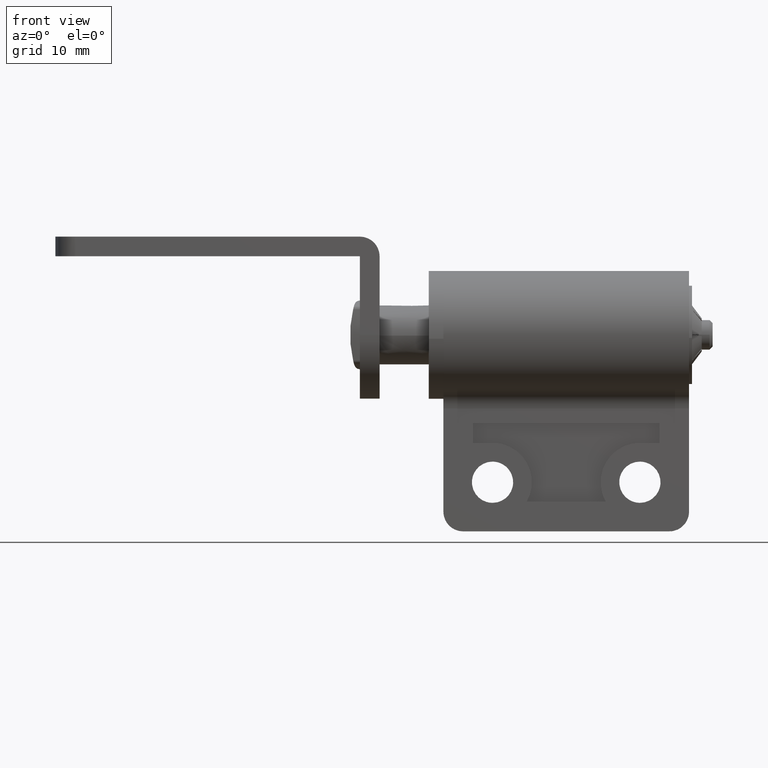
[diagram: clean part render]
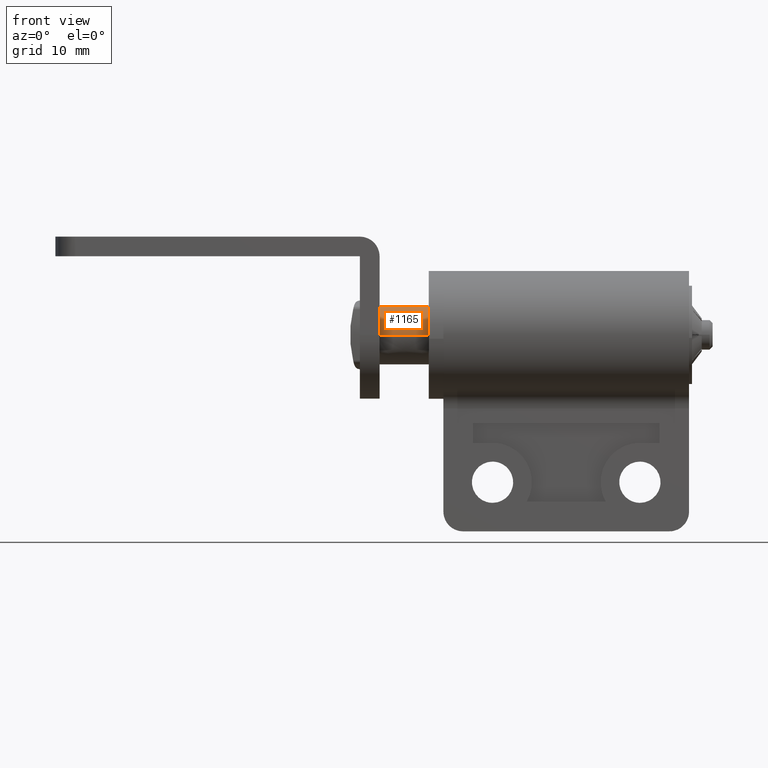
[diagram: same view with one face highlighted and labeled with its STEP entity id]
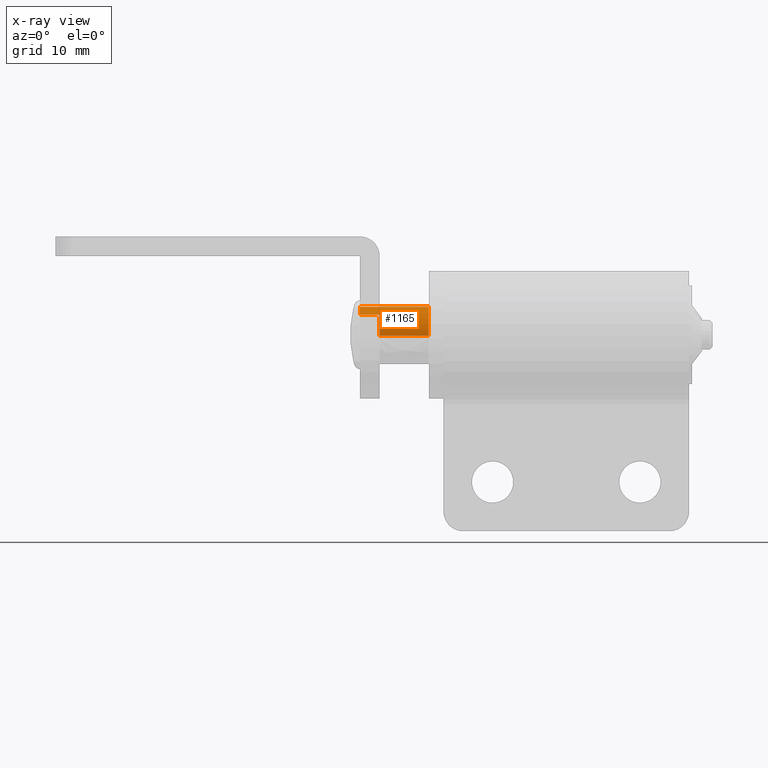
[diagram: x-ray of the same camera — body ghosted, the highlighted face saturated]
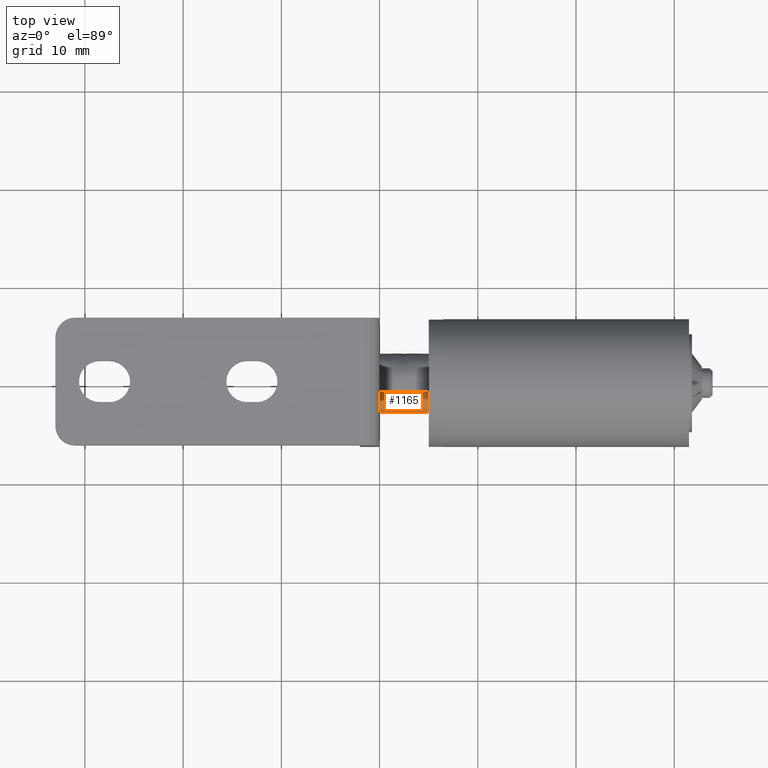
[diagram: same view with one face highlighted and labeled with its STEP entity id]
A machine part, front view. The second image highlights one B-rep face of the part: STEP entity #1165.
The next image is the same camera in x-ray: the body ghosted, the highlighted face saturated — about 0% of this face is hidden behind the body in this view.
A second angle (top view) of the same face is appended — the face is thin or edge-on in the first view.
In plain terms, the highlighted face is a freeform B-spline surface patch.
Its self-contained STEP definition (entity closure, byte-faithful):
#944=CARTESIAN_POINT('',(5.0,-0.947927683237747,2.846301654314158));
#945=VERTEX_POINT('',#944);
#978=CARTESIAN_POINT('',(5.000000000000001,-2.999187608111942,-0.069811828136555));
#979=VERTEX_POINT('',#978);
#993=CARTESIAN_POINT('',(3.330669E-016,-2.999187593945577,-0.069812436732782));
#994=VERTEX_POINT('',#993);
#995=CARTESIAN_POINT('',(5.000000000000001,-2.999187608111942,-0.069811828136555));
#996=CARTESIAN_POINT('',(3.330669E-016,-2.999187593945577,-0.069812436732782));
#997=QUASI_UNIFORM_CURVE('',1,(#995,#996),.UNSPECIFIED.,.F.,.U.);
#998=EDGE_CURVE('',#979,#994,#997,.T.);
#1068=CARTESIAN_POINT('',(-2.0,-0.947925828354257,2.846302281841339));
#1069=VERTEX_POINT('',#1068);
#1085=CARTESIAN_POINT('',(5.0,-0.947927683237747,2.846301654314158));
#1086=CARTESIAN_POINT('',(-2.0,-0.947925828354257,2.846302281841339));
#1087=QUASI_UNIFORM_CURVE('',1,(#1085,#1086),.UNSPECIFIED.,.F.,.U.);
#1088=EDGE_CURVE('',#945,#1069,#1087,.T.);
#1093=CARTESIAN_POINT('',(5.175000000000003,-2.998793601589934,-0.086738751734261));
#1094=CARTESIAN_POINT('',(5.175000000000001,-2.998990374310826,-0.078285194174667));
#1095=CARTESIAN_POINT('',(5.175000000000002,-3.050764316104186,2.145976355159272));
#1096=CARTESIAN_POINT('',(5.175000000000003,-0.939050498400793,2.849258097543949));
#1097=CARTESIAN_POINT('',(5.175000000000001,-0.930187064735721,2.852209961105773));
#1098=CARTESIAN_POINT('',(-2.179375000000000,-2.998793601589934,-0.086738751734261));
#1099=CARTESIAN_POINT('',(-2.179375000000000,-2.998990374310826,-0.078285194174667));
#1100=CARTESIAN_POINT('',(-2.179375000000000,-3.050764316104186,2.145976355159272));
#1101=CARTESIAN_POINT('',(-2.179374999999999,-0.939050498400793,2.849258097543949));
#1102=CARTESIAN_POINT('',(-2.179374999999999,-0.930187064735721,2.852209961105773));
#1110=(BOUNDED_SURFACE()B_SPLINE_SURFACE(2,1,((#1093,#1098),(#1094,#1099),(#1095,#1100),(#1096,#1101),(#1097,#1102)),.UNSPECIFIED.,.F.,.F.,.U.)B_SPLINE_SURFACE_WITH_KNOTS((3,1,1,3),(2,2),(0.0,0.019747452820523,3.969093624480461,3.988842433638872),(0.0,7.354375000000002),.UNSPECIFIED.)GEOMETRIC_REPRESENTATION_ITEM()RATIONAL_B_SPLINE_SURFACE(((1.002343231418496,1.002343231418496),(1.001171615709248,1.001171615709248),(0.765685424949238,0.765685424949238),(0.906977187688133,0.906977187688133),(0.907680205396570,0.907680205396570)))REPRESENTATION_ITEM('')SURFACE());
#1111=CARTESIAN_POINT('',(5.000000000000001,-2.999187608111941,-0.069811828136555));
#1112=CARTESIAN_POINT('',(5.0,-3.0,-0.034910641003469));
#1113=CARTESIAN_POINT('',(5.0,-3.0,0.0));
#1114=CARTESIAN_POINT('',(5.0,-3.000000000000000,2.162882820547033));
#1115=CARTESIAN_POINT('',(5.0,-0.947927683237747,2.846301654314158));
#1123=(BOUNDED_CURVE()B_SPLINE_CURVE(2,(#1111,#1112,#1113,#1114,#1115),.UNSPECIFIED.,.F.,.U.)B_SPLINE_CURVE_WITH_KNOTS((3,2,3),(0.745905477728320,0.750000000000000,0.946282106299464),.UNSPECIFIED.)CURVE()GEOMETRIC_REPRESENTATION_ITEM()RATIONAL_B_SPLINE_CURVE((0.990563069948447,0.995202968769377,1.0,0.770041208361864,0.901176784602230))REPRESENTATION_ITEM(''));
#1124=EDGE_CURVE('',#979,#945,#1123,.T.);
#1125=ORIENTED_EDGE('',*,*,#1124,.T.);
#1126=ORIENTED_EDGE('',*,*,#1088,.T.);
#1127=CARTESIAN_POINT('',(-2.0,-2.200000000000000,2.039607999999790));
#1128=VERTEX_POINT('',#1127);
#1129=CARTESIAN_POINT('',(-2.0,-2.200000000000000,2.039607999999790));
#1130=CARTESIAN_POINT('',(-2.0,-1.677325535437698,2.603384759595766));
#1131=CARTESIAN_POINT('',(-2.0,-0.947925828354257,2.846302281841340));
#1139=(BOUNDED_CURVE()B_SPLINE_CURVE(2,(#1129,#1130,#1131),.UNSPECIFIED.,.F.,.U.)B_SPLINE_CURVE_WITH_KNOTS((3,3),(0.0,0.303999316517522),.UNSPECIFIED.)CURVE()GEOMETRIC_REPRESENTATION_ITEM()RATIONAL_B_SPLINE_CURVE((1.0,0.949219642791800,0.960188061118834))REPRESENTATION_ITEM(''));
#1140=EDGE_CURVE('',#1128,#1069,#1139,.T.);
#1141=ORIENTED_EDGE('',*,*,#1140,.F.);
#1142=CARTESIAN_POINT('',(0.0,-2.200000000000000,2.039607805437110));
#1143=VERTEX_POINT('',#1142);
#1144=CARTESIAN_POINT('',(-2.0,-2.200000000000000,2.039607999999790));
#1145=CARTESIAN_POINT('',(0.0,-2.200000000000000,2.039607805437110));
#1146=QUASI_UNIFORM_CURVE('',1,(#1144,#1145),.UNSPECIFIED.,.F.,.U.);
#1147=EDGE_CURVE('',#1128,#1143,#1146,.T.);
#1148=ORIENTED_EDGE('',*,*,#1147,.T.);
#1149=CARTESIAN_POINT('',(3.330669E-016,-2.999187593945577,-0.069812436732782));
#1150=CARTESIAN_POINT('',(0.0,-3.027512215416741,1.147021069367691));
#1151=CARTESIAN_POINT('',(0.0,-2.200000000000003,2.039607805437111));
#1159=(BOUNDED_CURVE()B_SPLINE_CURVE(2,(#1149,#1150,#1151),.UNSPECIFIED.,.F.,.U.)B_SPLINE_CURVE_WITH_KNOTS((3,3),(0.485165571315524,1.0),.UNSPECIFIED.)CURVE()GEOMETRIC_REPRESENTATION_ITEM()RATIONAL_B_SPLINE_CURVE((0.866784032146344,0.862710819017474,1.0))REPRESENTATION_ITEM(''));
#1160=EDGE_CURVE('',#994,#1143,#1159,.T.);
#1161=ORIENTED_EDGE('',*,*,#1160,.F.);
#1162=ORIENTED_EDGE('',*,*,#998,.F.);
#1163=EDGE_LOOP('',(#1125,#1126,#1141,#1148,#1161,#1162));
#1164=FACE_OUTER_BOUND('',#1163,.T.);
#1165=ADVANCED_FACE('',(#1164),#1110,.T.);